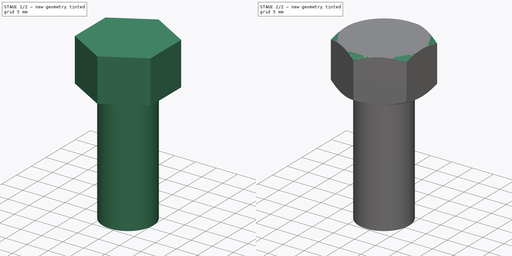
[diagram: build sequence overview — one tinted view per stage of 2, left to right]
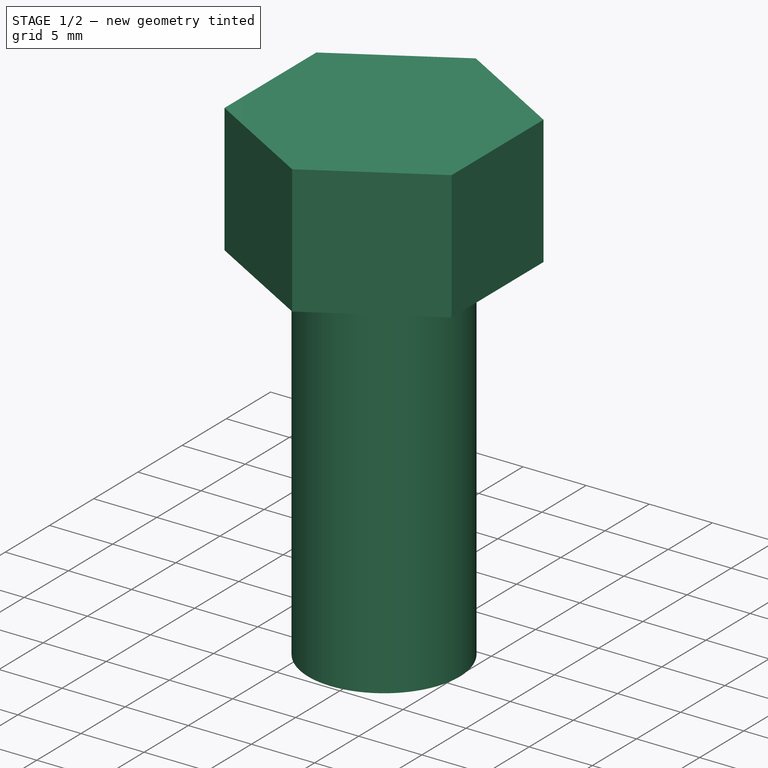
[diagram: stage 1 of 2 — iso view after this stage's code; geometry added in this stage tinted green]
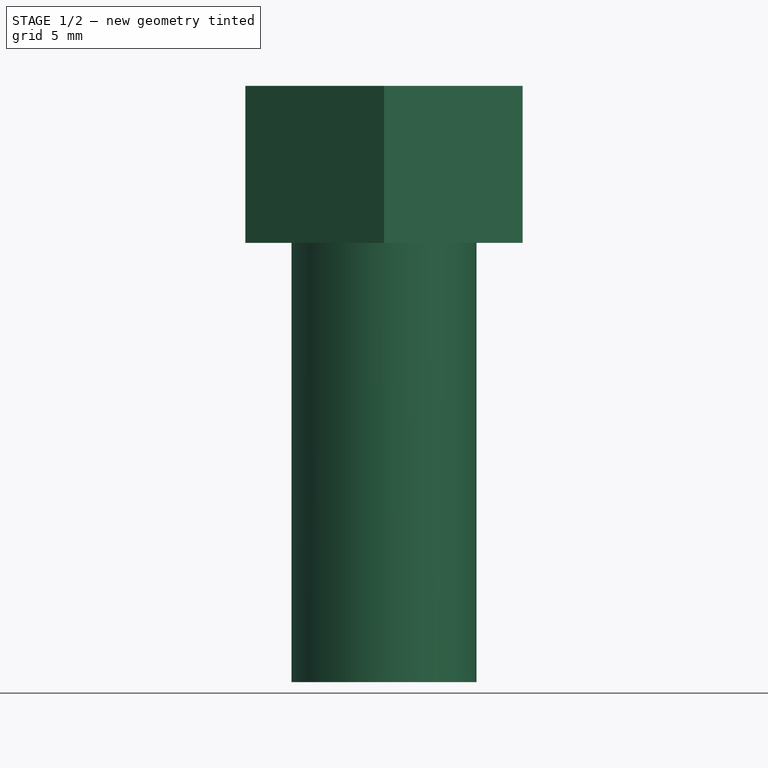
[diagram: stage 1 of 2 — front view after this stage's code; geometry added in this stage tinted green]
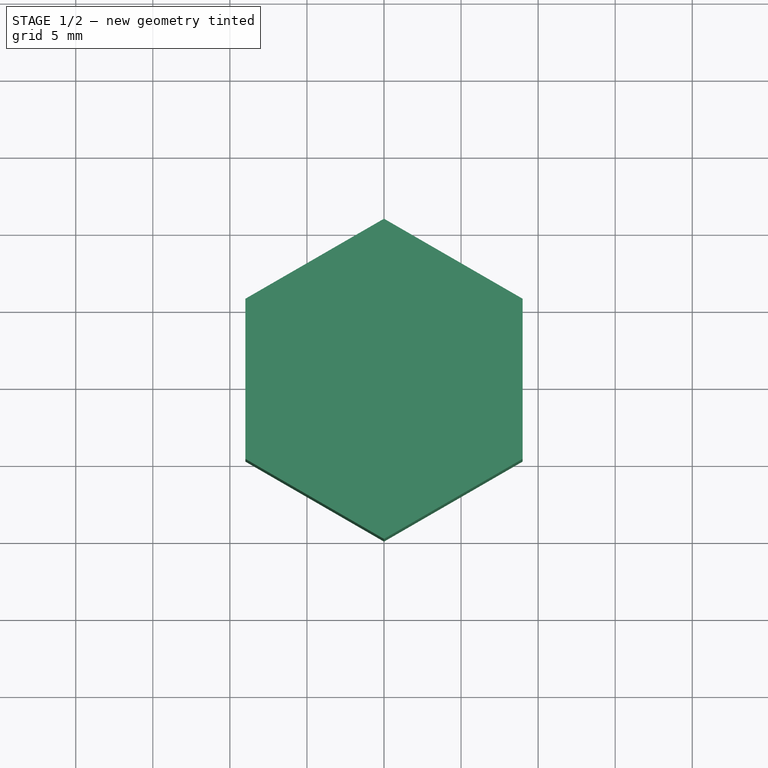
[diagram: stage 1 of 2 — top view after this stage's code; geometry added in this stage tinted green]
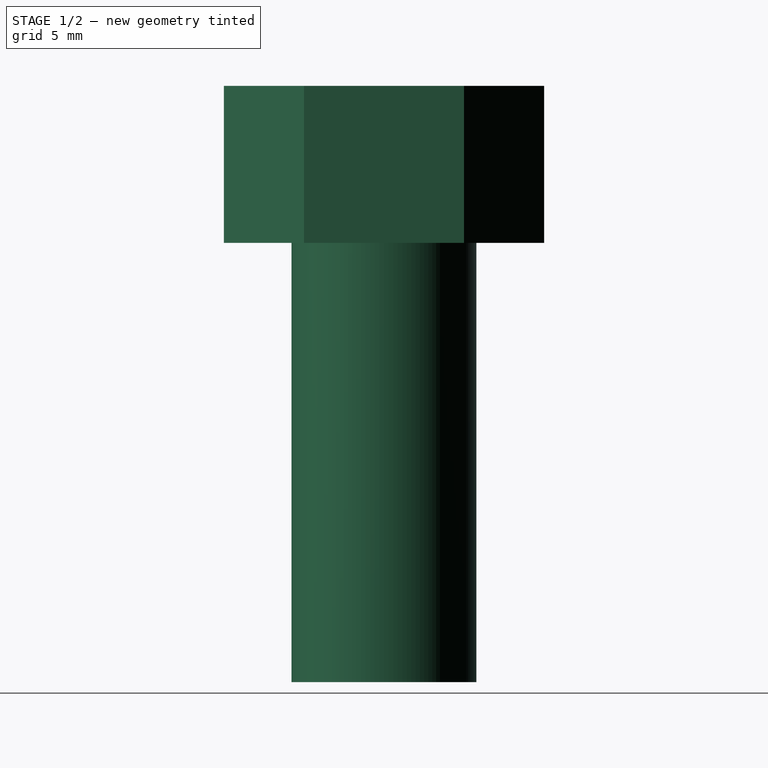
[diagram: stage 1 of 2 — right view after this stage's code; geometry added in this stage tinted green]
FCSTD DOCUMENT  (FreeCAD 0.21R33771 (Git))
Label: Fastener_Bolt_Tail_Vane
License: All rights reserved
LicenseURL: http://en.wikipedia.org/wiki/All_rights_reserved
objects: Sketcher::SketchObject×3, PartDesign::Pad×2, Spreadsheet::Sheet×1, PartDesign::Plane×1, PartDesign::Groove×1, PartDesign::Body×1
note: 11 computed .brp shape members not serialized (recipe doc carries the construction recipe); baked Part::Feature solids carry a one-line shape summary decoded from their .brp
EXTERNAL_REF file=../Master_of_Puppets.FCStd obj=Alternator
EXTERNAL_REF file=../Master_of_Puppets.FCStd obj=Fastener
EXTERNAL_REF file=../Master_of_Puppets.FCStd obj=Hub

FEATURE [Sketcher::SketchObject] Sketch  label="HeadSketch"
  FullyConstrained = true
  MapMode = 5
  Support = -> [XY_Plane]
  expr: Constraints[19] = Spreadsheet.MajorRadius
  sketch-geometry (7):
    g0: LineSegment StartX=1.9e-15 StartY=10.39 StartZ=0 EndX=-8.998 EndY=5.195 EndZ=0
    g1: LineSegment StartX=-8.998 StartY=5.195 StartZ=0 EndX=-8.998 EndY=-5.195 EndZ=0
    g2: LineSegment StartX=-8.998 StartY=-5.195 StartZ=0 EndX=1.8e-15 EndY=-10.39 EndZ=0
    g3: LineSegment StartX=1.8e-15 StartY=-10.39 StartZ=0 EndX=8.998 EndY=-5.195 EndZ=0
    g4: LineSegment StartX=8.998 StartY=-5.195 StartZ=0 EndX=8.998 EndY=5.195 EndZ=0
    g5: LineSegment StartX=8.998 StartY=5.195 StartZ=0 EndX=0 EndY=10.39 EndZ=0
    g6: Circle CenterX=0 CenterY=0 CenterZ=0 NormalX=0 NormalY=0 NormalZ=1 AngleXU=0 Radius=10.39
  constraints (16):
    c: Coincident(g0,g1)
    c: Coincident(g1,g2)
    c: Coincident(g2,g3)
    c: Coincident(g3,g4)
    c: Coincident(g4,g5)
    c: Equal(g0, g1-g5) x5
    c: PointOnObject(g0,g6)
    c: PointOnObject(g1,g6)
    c: PointOnObject(g2,g6)
    c: PointOnObject(g3,g6)
    c: PointOnObject(g4,g6)
    c: PointOnObject(g5,g6)
    c: Coincident(g6,g-1)
    c: PointOnObject(g5,g-2)
    c: Symmetric(g0,g2,g-1)
    c: DistanceY(g-1,g0) = 10.39
FEATURE [PartDesign::Pad] Pad  label="HeadPad"
  Direction = (0,0,1)
  Length = 10.19
  Length2 = 100
  Profile = -> Sketch
  Type = 0
  expr: Length = Spreadsheet.HeadHeight
FEATURE [Sketcher::SketchObject] Sketch001
  FullyConstrained = true
  MapMode = 5
  Placement = pos=(0,0,0) rot=(0.57735,0.57735,0.57735;2.0944rad)
  Support = -> [YZ_Plane]
  expr: Constraints[0] = Spreadsheet.TriangleDistance
  expr: Constraints[15] = Spreadsheet.Theta
  expr: Constraints[1] = Spreadsheet.TriangleWidth
  expr: Constraints[7] = Spreadsheet.Theta
  expr: Constraints[8] = Spreadsheet.HeadHeight
  sketch-geometry (6):
    g0: LineSegment StartX=-8.998 StartY=10.19 StartZ=0 EndX=-19.388 EndY=10.19 EndZ=0
    g1: LineSegment StartX=-19.388 StartY=4.19133 StartZ=0 EndX=-19.388 EndY=10.19 EndZ=0
    g2: LineSegment StartX=-8.998 StartY=10.19 StartZ=0 EndX=-19.388 EndY=4.19133 EndZ=0
    g3: LineSegment StartX=-8.998 StartY=0 StartZ=0 EndX=-19.388 EndY=0 EndZ=0
    g4: LineSegment StartX=-19.388 StartY=0 StartZ=0 EndX=-19.388 EndY=5.99867 EndZ=0
    g5: LineSegment StartX=-8.998 StartY=0 StartZ=0 EndX=-19.388 EndY=5.99867 EndZ=0
  constraints (18):
    c: DistanceX(g0,g-1) = 19.388
    c: DistanceX(g0,g0) = 10.39
    c: Coincident(g0,g1)
    c: Horizontal(g0)
    c: Vertical(g1)
    c: Coincident(g2,g0)
    c: Coincident(g2,g1)
    c: Angle(g0,g2) = 0.523599
    c: DistanceY(g-1,g0) = 10.19
    c: PointOnObject(g3,g-1)
    c: Horizontal(g3)
    c: Coincident(g4,g3)
    c: Vertical(g4)
    c: Coincident(g5,g3)
    c: PointOnObject(g5,g1)
    c: Angle(g5,g3) = 0.523599
    c: Equal(g3,g0)
    c: Coincident(g5,g4)
FEATURE [Spreadsheet::Sheet] Spreadsheet
  cells = A1='Variant; B1='Radius; C1='NominalLength; D1='WidthAcrossCorners; A2='HolesRadius; B2(Radius)==.B3; C2(NominalLength)==.C3; D2(WidthAcrossCorners)==.D3; A3='HolesRadius; B3==Master_of_Puppets#Alternator.HolesRadius; C3==Master_of_Puppets#Fastener.TailVaneBracketBoltLength; D3==Master_of_Puppets#Fastener.HolesWidthAcrossCorners; A4='HubHoles; B4==Master_of_Puppets#Hub.HubHolesRadius; C4==Master_of_Puppets#Fastener.HubHolesBoltLength; D4==Master_of_Puppets#Fastener.HubHolesWidthAcrossCorners; A5='StatorMold; B5==Master_of_Puppets#Alternator.StatorMoldBoltDiameter / 2; C5==Master_of_Puppets#Alternator.StatorMoldBoltLength; D5==Master_of_Puppets#Alternator.StatorMoldBoltWidthAcrossCorners; A6='Locating; B6==Master_of_Puppets#Alternator.LocatingBoltDiameter / 2; C6==Master_of_Puppets#Alternator.LocatingBoltLength; D6==Master_of_Puppets#Alternator.StatorMoldBoltWidthAcrossCorners; A8='Inputs; A9='HexNutThickness; B9(HexNutThickness)==Master_of_Puppets#Fastener.HexNutThickness; A10='Parameters; A11='HeadHeight; B11(HeadHeight)==HexNutThickness; A12='MinorDiameter; B12(MinorDiameter)==Radius * 2; A13='Calculations; B13='See Also; C13='https://calcresource.com/geom-hexagon.html; A14='CentralAngle; B14(CentralAngle)==360 / 6; A15='Theta; B15(Theta)==CentralAngle / 2; A16='Inradius; B16(Inradius)==cos(Theta) * MajorRadius; A17='TriangleDistance; B17(TriangleDistance)==MajorRadius + Inradius; A18='TriangleWidth; B18(TriangleWidth)==MajorRadius; A19='MajorRadius; B19(MajorRadius)==WidthAcrossCorners / 2; A20='MinorRadius; B20(MinorRadius)==MinorDiameter / 2
  expr: .cells.Bind.B2.D2 = tuple(.cells; <<B>> + str(hiddenref(Body.Variant) + 3); <<D>> + str(hiddenref(Body.Variant) + 3))
FEATURE [PartDesign::Plane] DatumPlane
  Length = 60
  MapMode = 2
  ResizeMode = 0
  Width = 60
FEATURE [Sketcher::SketchObject] Sketch002  label="ShaftSketch"
  FullyConstrained = true
  MapMode = 5
  Placement = pos=(0,0,0) rot=(0,1,0;3.14159rad)
  Support = -> [DatumPlane]
  expr: Constraints[1] = Spreadsheet.MinorRadius
  sketch-geometry (1):
    g0: Circle CenterX=0 CenterY=0 CenterZ=0 NormalX=0 NormalY=0 NormalZ=1 AngleXU=0 Radius=6
  constraints (2):
    c: Coincident(g0,g-1)
    c: Radius(g0) = 6
FEATURE [PartDesign::Pad] Pad001  label="ShaftPad"
  BaseFeature = -> Pad
  Direction = (0,0,-1)
  Length = 28.5
  Length2 = 100
  Profile = -> Sketch002
  Type = 0
  expr: Length = Spreadsheet.NominalLength
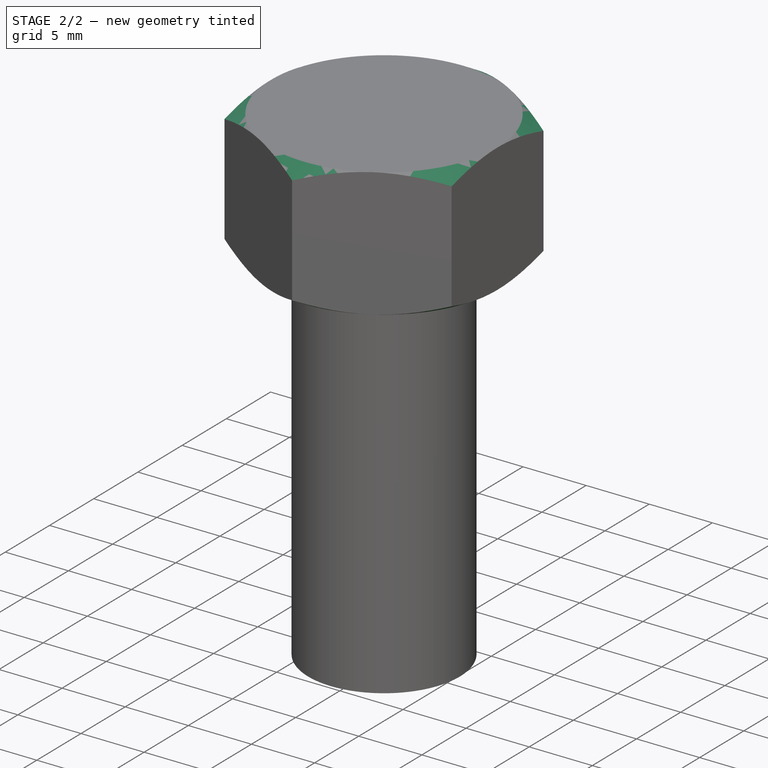
[diagram: stage 2 of 2 — iso view after this stage's code; geometry added in this stage tinted green]
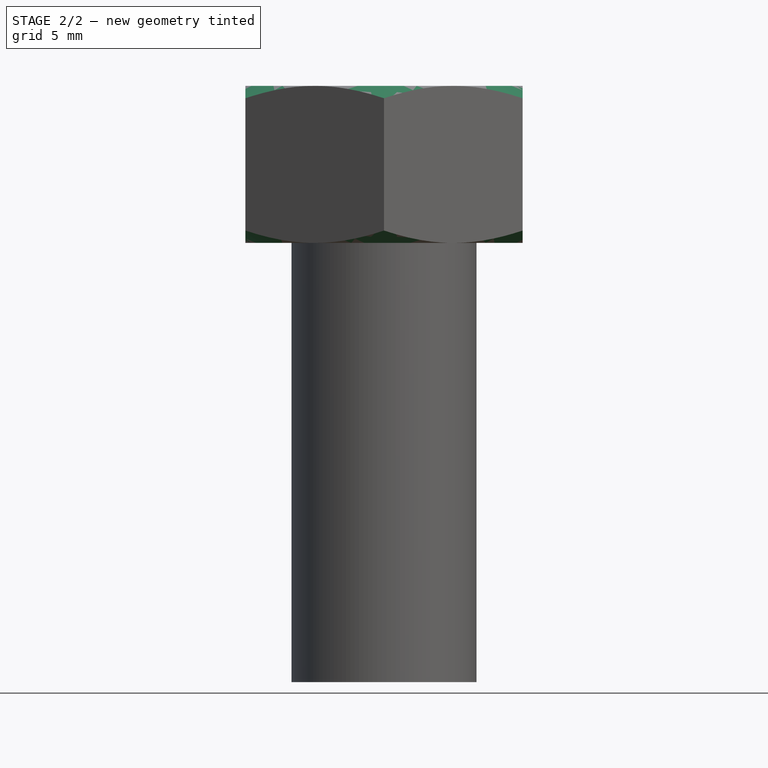
[diagram: stage 2 of 2 — front view after this stage's code; geometry added in this stage tinted green]
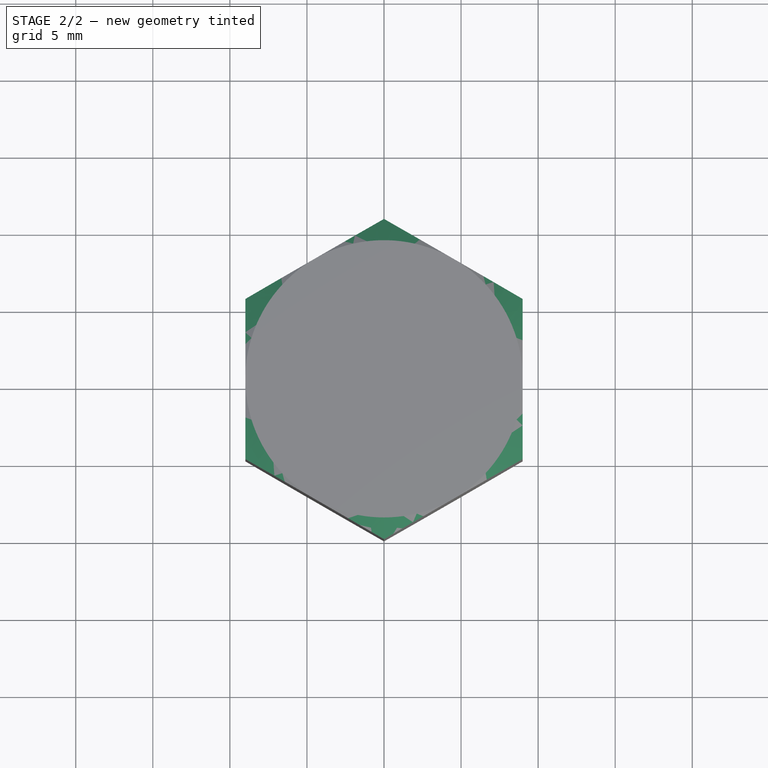
[diagram: stage 2 of 2 — top view after this stage's code; geometry added in this stage tinted green]
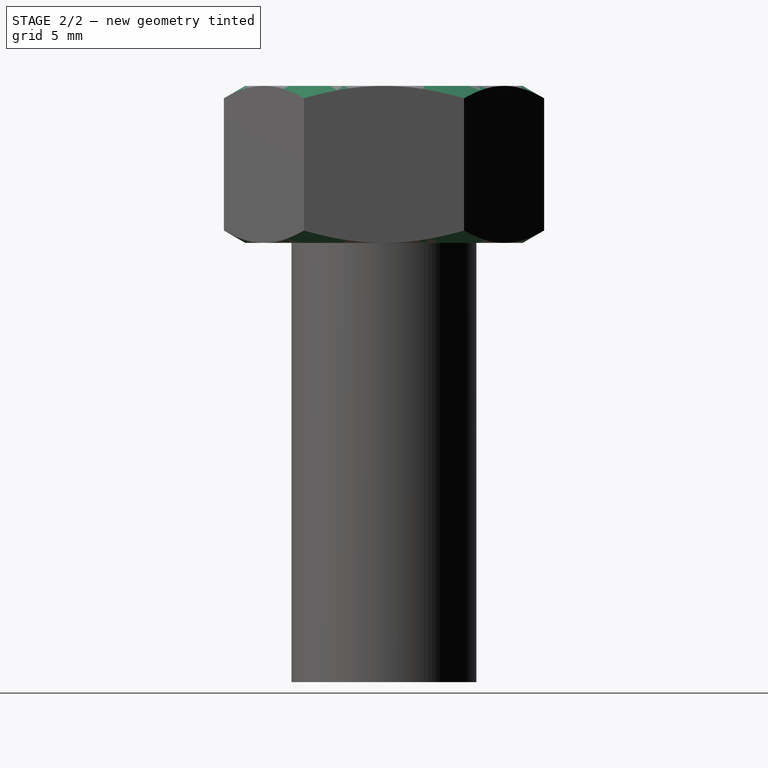
[diagram: stage 2 of 2 — right view after this stage's code; geometry added in this stage tinted green]
FEATURE [PartDesign::Groove] Groove
  Angle = 360
  Axis = (-3e-16,3e-16,1)
  Base = (0,0,0)
  BaseFeature = -> Pad001
  Profile = -> Sketch001
  ReferenceAxis = -> Z_Axis
  Reversed = true
FEATURE [PartDesign::Body] Body  label="Fastener_Bolt_Tail_Vane"
  Group = -> [Sketch,Pad,Sketch001,DatumPlane,Sketch002,Pad001,Groove]
  Origin = -> Origin
  Tip = -> Groove
  Variant = 0
  expr: .Variant.Enum = Spreadsheet.cells[<<A3:|>>]
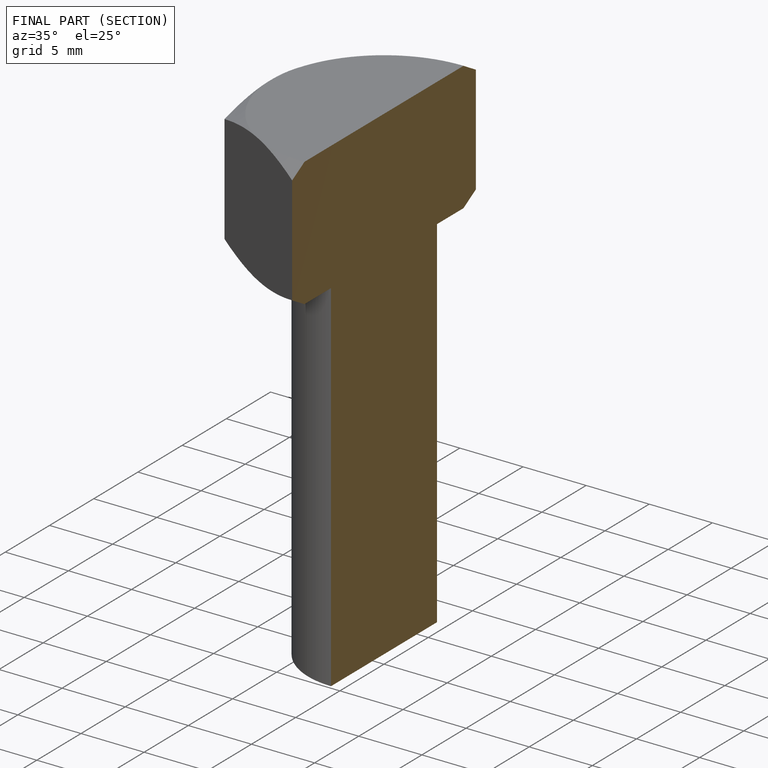
[diagram: finished part — half-section view (interior)]
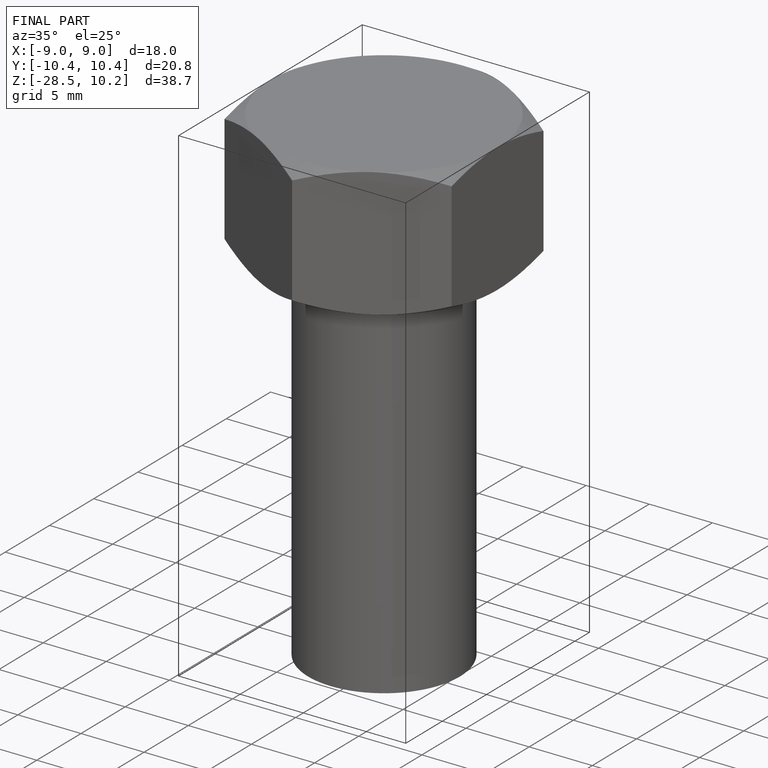
[diagram: finished part — iso view with bounding-box wireframe]
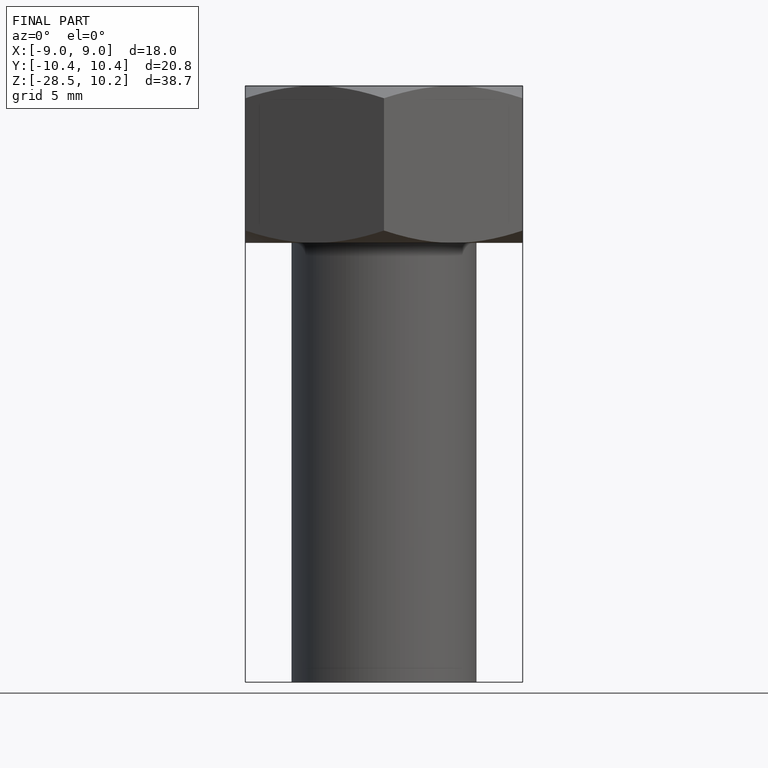
[diagram: finished part — front view with bounding-box wireframe]
